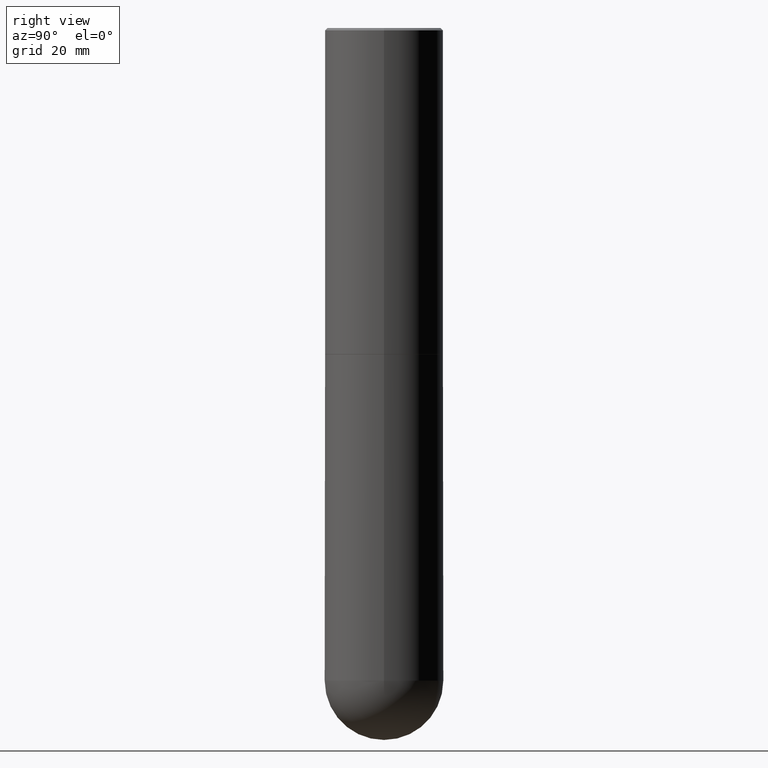
[diagram: clean part render]
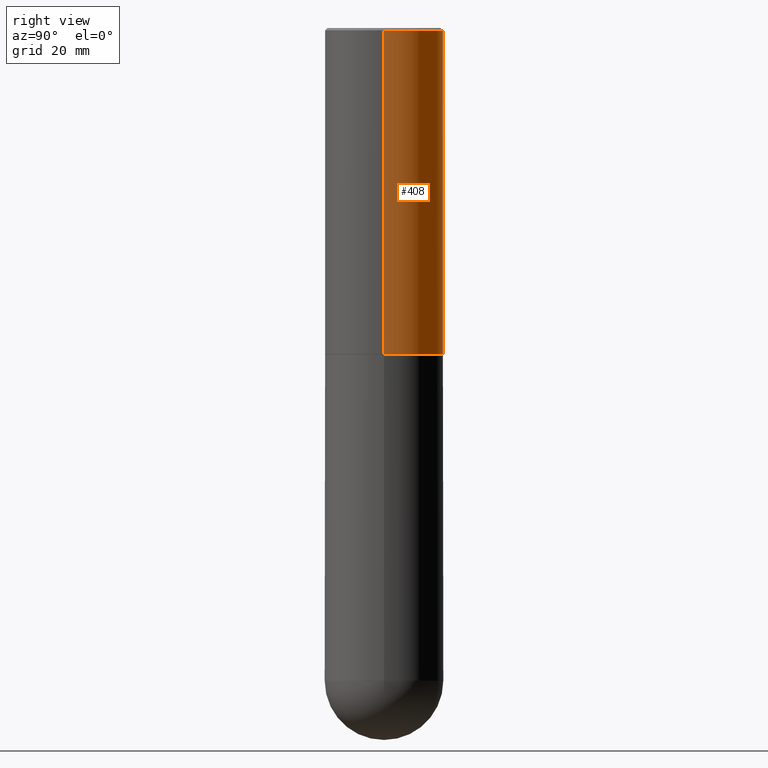
[diagram: same view with one face highlighted and labeled with its STEP entity id]
A machine part, right view. The second image highlights one B-rep face of the part: STEP entity #408.
In plain terms, the highlighted cylindrical surface (partial cylindrical patch) has radius 12.7 mm, axis along (-0, 0, 1).
Its self-contained STEP definition (entity closure, byte-faithful):
#11 = CIRCLE ( 'NONE', #284, 0.5000000000000002220 ) ;
#13 = CARTESIAN_POINT ( 'NONE',  ( 6.722593748202942280E-29, -9.598082200479810007E-15, -2.749000000000000554 ) ) ;
#21 = DIRECTION ( 'NONE',  ( 1.000000000000000000, -6.982962677686267499E-15, 0.000000000000000000 ) ) ;
#22 = EDGE_CURVE ( 'NONE', #355, #329, #74, .T. ) ;
#55 = EDGE_CURVE ( 'NONE', #221, #329, #142, .T. ) ;
#74 = LINE ( 'NONE', #230, #266 ) ;
#82 = CARTESIAN_POINT ( 'NONE',  ( 4.890937612370299433E-31, -6.982962677686328587E-17, -0.02000000000000010797 ) ) ;
#87 = ORIENTED_EDGE ( 'NONE', *, *, #55, .F. ) ;
#94 = LINE ( 'NONE', #229, #386 ) ;
#97 = DIRECTION ( 'NONE',  ( 1.000000000000000000, -6.982962677686267499E-15, 4.876176775795935793E-29 ) ) ;
#100 = CARTESIAN_POINT ( 'NONE',  ( -0.5000000000000002220, -1.281242234827832765E-15, -2.749000000000000554 ) ) ;
#129 = ORIENTED_EDGE ( 'NONE', *, *, #337, .F. ) ;
#142 = CIRCLE ( 'NONE', #196, 0.5000000000000000000 ) ;
#146 = EDGE_CURVE ( 'NONE', #383, #355, #11, .T. ) ;
#158 = CARTESIAN_POINT ( 'NONE',  ( 0.5000000000000002220, -1.308956353932294494E-14, -2.749000000000000554 ) ) ;
#164 = EDGE_LOOP ( 'NONE', ( #311, #280, #87, #129 ) ) ;
#195 = CYLINDRICAL_SURFACE ( 'NONE', #209, 0.5000000000000001110 ) ;
#196 = AXIS2_PLACEMENT_3D ( 'NONE', #82, #395, #372 ) ;
#209 = AXIS2_PLACEMENT_3D ( 'NONE', #283, #388, #97 ) ;
#221 = VERTEX_POINT ( 'NONE', #403 ) ;
#229 = CARTESIAN_POINT ( 'NONE',  ( 0.5000000000000001110, -3.491481338843134539E-15, 2.438088387897968457E-29 ) ) ;
#230 = CARTESIAN_POINT ( 'NONE',  ( -0.5000000000000001110, 3.552713678800501718E-15, -2.459467545127453732E-29 ) ) ;
#231 = FACE_OUTER_BOUND ( 'NONE', #164, .T. ) ;
#235 = DIRECTION ( 'NONE',  ( -2.445468806185136597E-29, 3.491481338843145583E-15, 1.000000000000000000 ) ) ;
#266 = VECTOR ( 'NONE', #360, 39.37007874015748143 ) ;
#280 = ORIENTED_EDGE ( 'NONE', *, *, #22, .T. ) ;
#283 = CARTESIAN_POINT ( 'NONE',  ( 0.000000000000000000, 0.000000000000000000, 0.000000000000000000 ) ) ;
#284 = AXIS2_PLACEMENT_3D ( 'NONE', #13, #235, #21 ) ;
#311 = ORIENTED_EDGE ( 'NONE', *, *, #146, .T. ) ;
#325 = CARTESIAN_POINT ( 'NONE',  ( -0.5000000000000000000, 3.421651712066270057E-15, -0.02000000000000010797 ) ) ;
#329 = VERTEX_POINT ( 'NONE', #325 ) ;
#337 = EDGE_CURVE ( 'NONE', #383, #221, #94, .T. ) ;
#355 = VERTEX_POINT ( 'NONE', #100 ) ;
#360 = DIRECTION ( 'NONE',  ( -2.445468806185136877E-29, 3.491481338843145188E-15, 1.000000000000000000 ) ) ;
#372 = DIRECTION ( 'NONE',  ( 1.000000000000000000, -6.982962677686266711E-15, 0.000000000000000000 ) ) ;
#383 = VERTEX_POINT ( 'NONE', #158 ) ;
#386 = VECTOR ( 'NONE', #390, 39.37007874015748143 ) ;
#388 = DIRECTION ( 'NONE',  ( -2.445468806185136597E-29, 3.491481338843145583E-15, 1.000000000000000000 ) ) ;
#390 = DIRECTION ( 'NONE',  ( -2.445468806185136877E-29, 3.491481338843145188E-15, 1.000000000000000000 ) ) ;
#395 = DIRECTION ( 'NONE',  ( -2.445468806185136597E-29, 3.491481338843145583E-15, 1.000000000000000000 ) ) ;
#403 = CARTESIAN_POINT ( 'NONE',  ( 0.5000000000000000000, -3.500078625662629079E-15, -0.02000000000000010797 ) ) ;
#408 = ADVANCED_FACE ( 'NONE', ( #231 ), #195, .T. ) ;